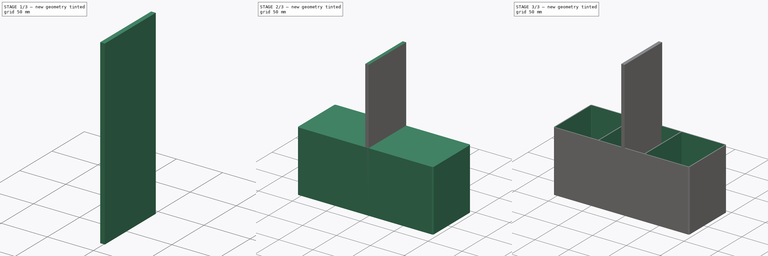
[diagram: build sequence overview — one tinted view per stage of 3, left to right]
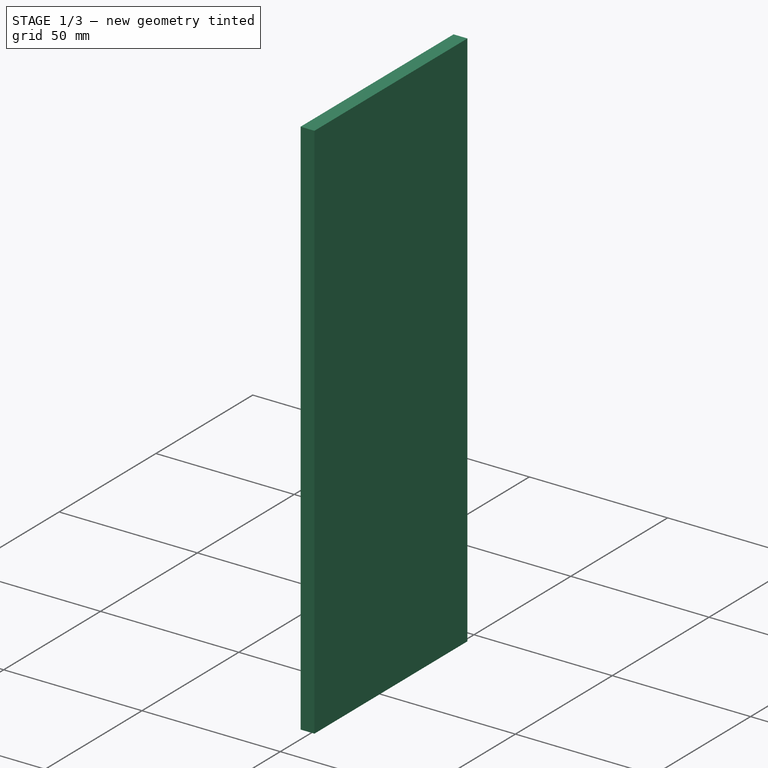
[diagram: stage 1 of 3 — iso view after this stage's code; geometry added in this stage tinted green]
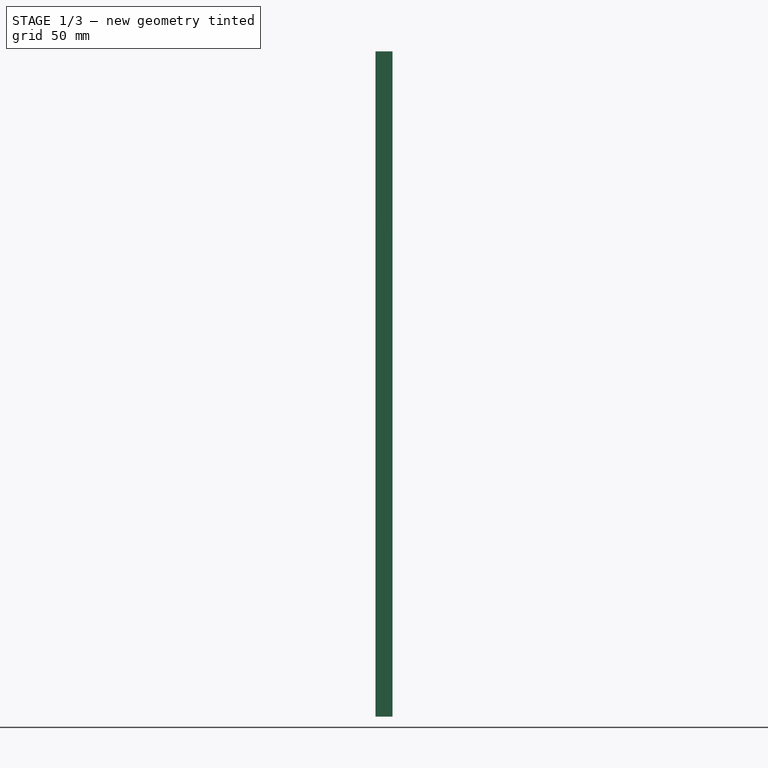
[diagram: stage 1 of 3 — front view after this stage's code; geometry added in this stage tinted green]
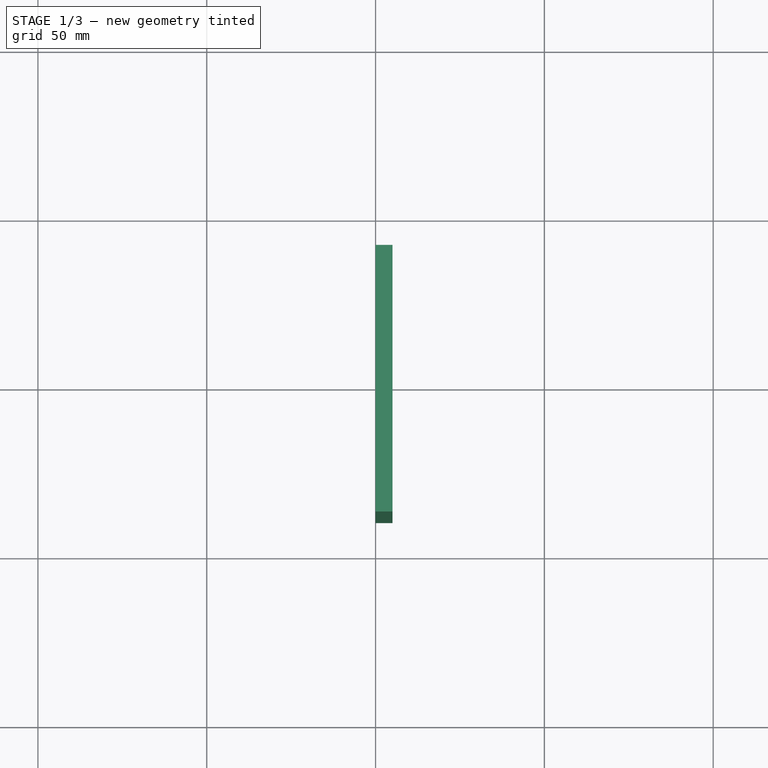
[diagram: stage 1 of 3 — top view after this stage's code; geometry added in this stage tinted green]
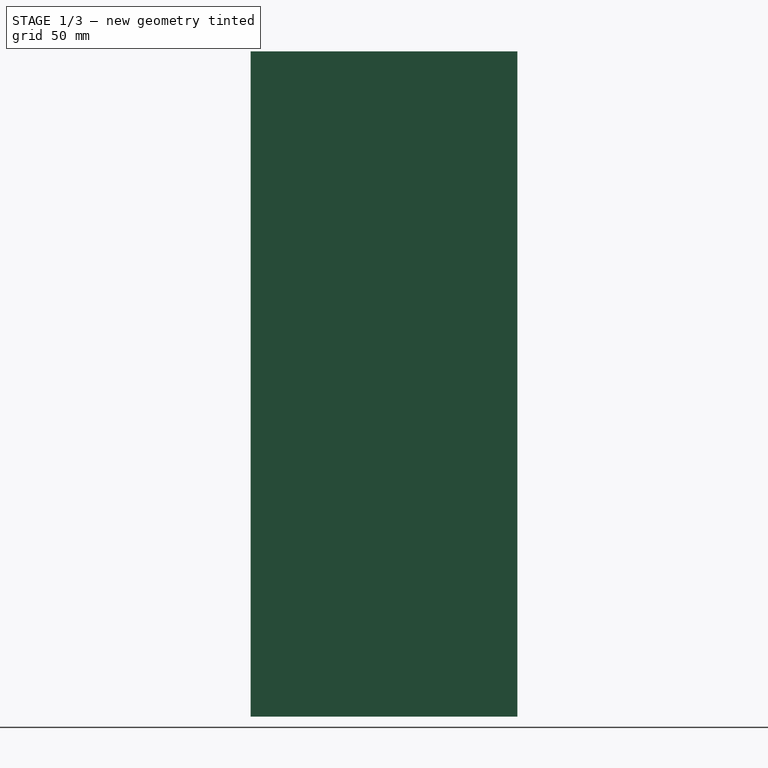
[diagram: stage 1 of 3 — right view after this stage's code; geometry added in this stage tinted green]
FCSTD DOCUMENT  (FreeCAD 0.21R33771 (Git))
Label: 卫生间-镜柜-配件
License: All rights reserved
LicenseURL: http://en.wikipedia.org/wiki/All_rights_reserved
objects: Sketcher::SketchObject×5, PartDesign::Pad×5, PartDesign::Body×4, App::Part×4, PartDesign::Thickness×1
note: 21 computed .brp shape members not serialized (recipe doc carries the construction recipe); baked Part::Feature solids carry a one-line shape summary decoded from their .brp

FEATURE [PartDesign::Body] Body001  label="实体001"
  Group = -> [Sketch002,Pad002]
  Origin = -> Origin003
  Tip = -> Pad002
FEATURE [App::Part] Part001  label="底层隔板"
  Group = -> [Body001]
  Origin = -> Origin002
  Placement = pos=(223,0,0) rot=(0,0,1;0rad)
FEATURE [Sketcher::SketchObject] Sketch003
  FullyConstrained = true
  MapMode = 5
  Placement = pos=(0,0,0) rot=(0.57735,0.57735,0.57735;2.0944rad)
  Support = -> [YZ_Plane005]
  sketch-geometry (4):
    g0: LineSegment StartX=-39.5 StartY=194 StartZ=0 EndX=39.5 EndY=194 EndZ=0
    g1: LineSegment StartX=39.5 StartY=194 StartZ=0 EndX=39.5 EndY=0 EndZ=0
    g2: LineSegment StartX=39.5 StartY=0 StartZ=0 EndX=-39.5 EndY=0 EndZ=0
    g3: LineSegment StartX=-39.5 StartY=0 StartZ=0 EndX=-39.5 EndY=194 EndZ=0
  constraints (12):
    c: Coincident(g0,g1)
    c: Coincident(g1,g2)
    c: Coincident(g2,g3)
    c: Coincident(g3,g0)
    c: Horizontal(g0)
    c: Horizontal(g2)
    c: Vertical(g1)
    c: Vertical(g3)
    c: DistanceX(g2,g2) = 79
    c: PointOnObject(g-1,g2)
    c: DistanceX(g-2,g1) = 39.5
    c: DistanceY(g1,g1) = 194
FEATURE [PartDesign::Pad] Pad003
  Direction = (1,-2e-16,3e-16)
  Length = 5
  Length2 = 10
  Placement = pos=(0,0,0) rot=(1,1,1;2.0944rad)
  Profile = -> Sketch003
  ReferenceAxis = -> Sketch003 [N_Axis]
  Type = 0
FEATURE [PartDesign::Body] Body002  label="实体002"
  Group = -> [Sketch003,Pad003]
  Origin = -> Origin005
  Tip = -> Pad003
FEATURE [App::Part] Part002  label="中间层隔板"
  Group = -> [Body002]
  Origin = -> Origin004
  Placement = pos=(224,0,236) rot=(0,0,1;0rad)
FEATURE [Sketcher::SketchObject] Sketch004
  FullyConstrained = true
  MapMode = 5
  Placement = pos=(0,0,0) rot=(0.57735,0.57735,0.57735;2.0944rad)
  Support = -> [YZ_Plane007]
  sketch-geometry (4):
    g0: LineSegment StartX=-39.5 StartY=197 StartZ=0 EndX=39.5 EndY=197 EndZ=0
    g1: LineSegment StartX=39.5 StartY=197 StartZ=0 EndX=39.5 EndY=0 EndZ=0
    g2: LineSegment StartX=39.5 StartY=0 StartZ=0 EndX=-39.5 EndY=0 EndZ=0
    g3: LineSegment StartX=-39.5 StartY=0 StartZ=0 EndX=-39.5 EndY=197 EndZ=0
  constraints (12):
    c: Coincident(g0,g1)
    c: Coincident(g1,g2)
    c: Coincident(g2,g3)
    c: Coincident(g3,g0)
    c: Horizontal(g0)
    c: Horizontal(g2)
    c: Vertical(g1)
    c: Vertical(g3)
    c: PointOnObject(g-1,g2)
    c: DistanceX(g2,g2) = 79
    c: DistanceX(g-2,g2) = -39.5
    c: DistanceY(g1,g1) = 197
FEATURE [PartDesign::Pad] Pad004
  Direction = (1,-2e-16,3e-16)
  Length = 5
  Length2 = 10
  Placement = pos=(0,0,0) rot=(1,1,1;2.0944rad)
  Profile = -> Sketch004
  ReferenceAxis = -> Sketch004 [N_Axis]
  Type = 0
FEATURE [PartDesign::Body] Body003  label="实体003"
  Group = -> [Sketch004,Pad004]
  Origin = -> Origin007
  Tip = -> Pad004
FEATURE [App::Part] Part003  label="顶层隔板"
  Group = -> [Body003]
  Origin = -> Origin006
  Placement = pos=(226,0,473) rot=(0,0,1;0rad)
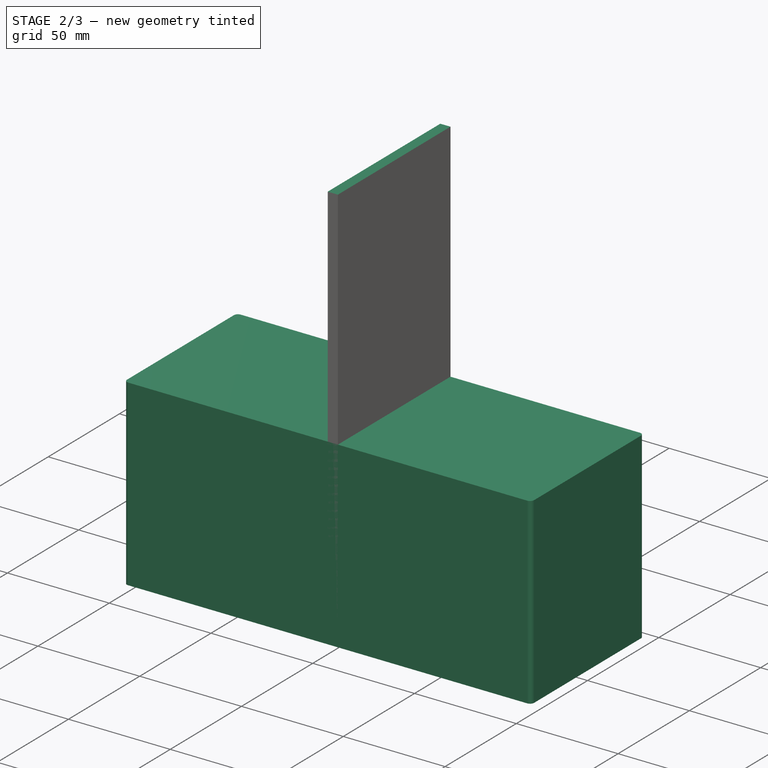
[diagram: stage 2 of 3 — iso view after this stage's code; geometry added in this stage tinted green]
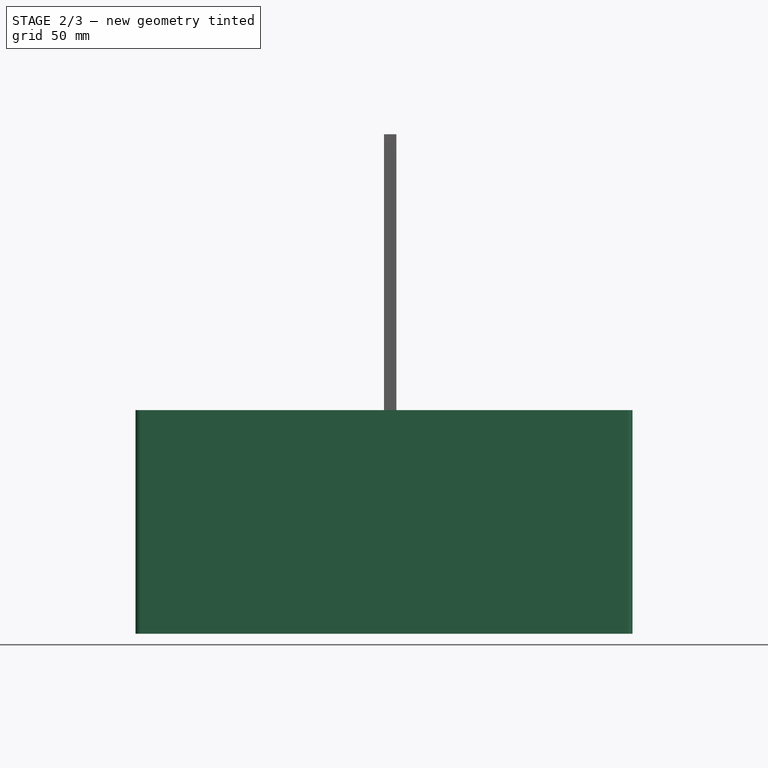
[diagram: stage 2 of 3 — front view after this stage's code; geometry added in this stage tinted green]
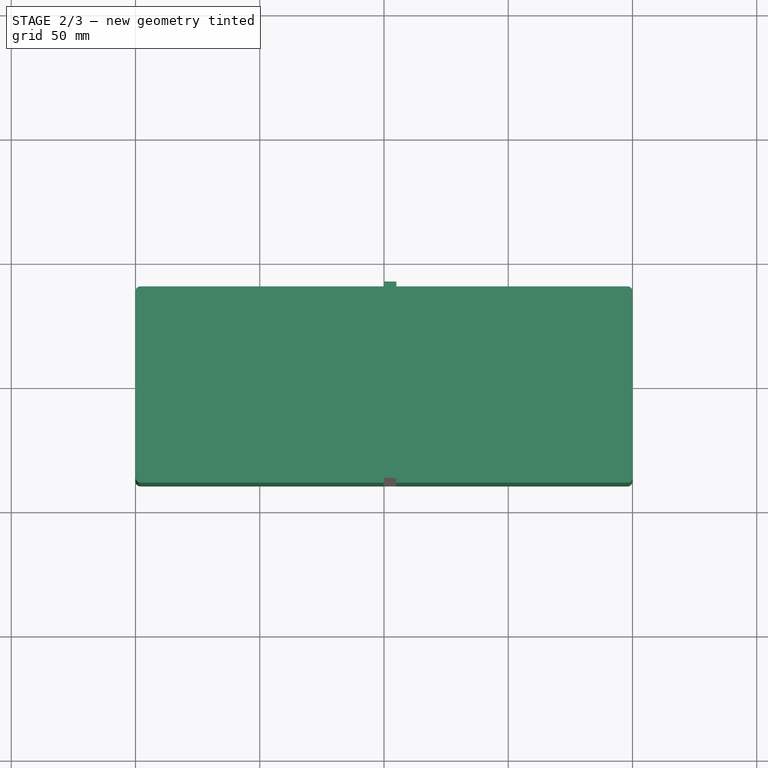
[diagram: stage 2 of 3 — top view after this stage's code; geometry added in this stage tinted green]
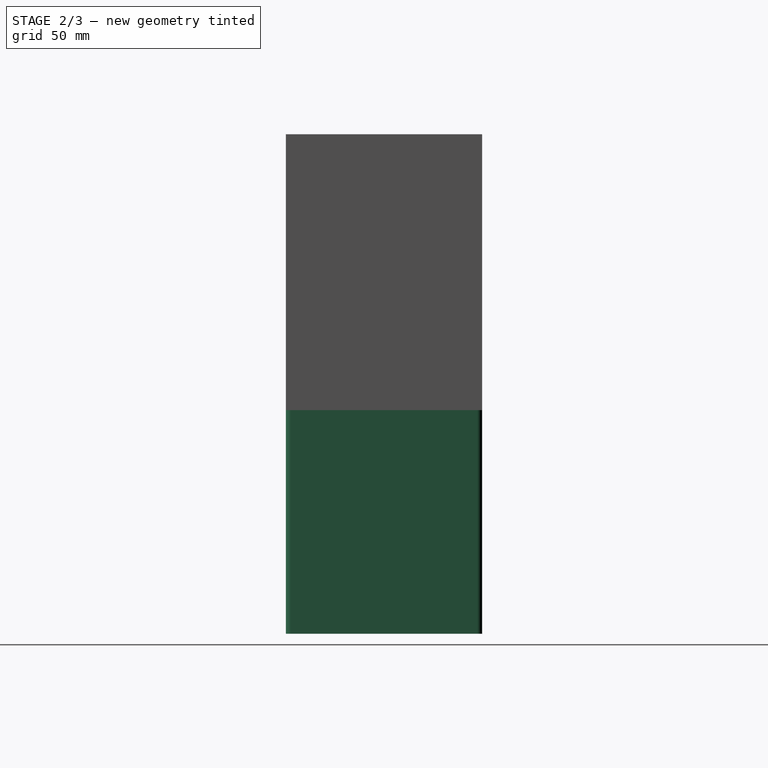
[diagram: stage 2 of 3 — right view after this stage's code; geometry added in this stage tinted green]
FEATURE [Sketcher::SketchObject] Sketch
  FullyConstrained = true
  MapMode = 5
  Support = -> [XY_Plane]
  sketch-geometry (8):
    g0: LineSegment StartX=-98 StartY=39.5 StartZ=0 EndX=98 EndY=39.5 EndZ=0
    g1: LineSegment StartX=100 StartY=37.5 StartZ=0 EndX=100 EndY=-37.5 EndZ=0
    g2: LineSegment StartX=98 StartY=-39.5 StartZ=0 EndX=-98 EndY=-39.5 EndZ=0
    g3: LineSegment StartX=-100 StartY=-37.5 StartZ=0 EndX=-100 EndY=37.5 EndZ=0
    g4: ArcOfCircle CenterX=-98 CenterY=37.5 CenterZ=0 NormalX=0 NormalY=0 NormalZ=1 AngleXU=0 Radius=2 StartAngle=1.5708 EndAngle=3.14159
    g5: ArcOfCircle CenterX=-98 CenterY=-37.5 CenterZ=0 NormalX=0 NormalY=0 NormalZ=1 AngleXU=0 Radius=2 StartAngle=3.14159 EndAngle=4.71239
    g6: ArcOfCircle CenterX=98 CenterY=-37.5 CenterZ=0 NormalX=0 NormalY=0 NormalZ=1 AngleXU=0 Radius=2 StartAngle=4.71239 EndAngle=6.28319
    g7: ArcOfCircle CenterX=98 CenterY=37.5 CenterZ=0 NormalX=0 NormalY=0 NormalZ=1 AngleXU=0 Radius=2 StartAngle=-1.8e-15 EndAngle=1.5708
  constraints (19):
    c: Horizontal(g0)
    c: Horizontal(g2)
    c: Vertical(g1)
    c: Vertical(g3)
    c: Tangent(g0,g4) = 1.5708
    c: Tangent(g3,g4) = 1.5708
    c: Tangent(g2,g5) = 1.5708
    c: Tangent(g3,g5) = 1.5708
    c: Tangent(g1,g6) = 1.5708
    c: Tangent(g2,g6) = 1.5708
    c: Tangent(g0,g7) = 1.5708
    c: Tangent(g1,g7) = 1.5708
    c: Radius(g7) = 2
    c: Radius(g6) = 2
    c: Radius(g5) = 2
    c: Radius(g4) = 2
    c: Distance(g3,g1) = 200
    c: Distance(g2,g0) = 79
    c: Symmetric(g5,g7,g-1)
FEATURE [PartDesign::Pad] Pad
  Direction = (0,0,1)
  Length = 90
  Length2 = 10
  Profile = -> Sketch
  ReferenceAxis = -> Sketch [N_Axis]
  Type = 0
FEATURE [PartDesign::Body] Body  label="实体"
  Group = -> [Sketch,Pad,Thickness,Sketch001,Pad001]
  Origin = -> Origin
  Tip = -> Pad001
FEATURE [App::Part] Part  label="盒子"
  Group = -> [Body]
  Origin = -> Origin001
FEATURE [Sketcher::SketchObject] Sketch002
  FullyConstrained = true
  MapMode = 5
  Placement = pos=(0,0,0) rot=(0.57735,0.57735,0.57735;2.0944rad)
  Support = -> [YZ_Plane003]
  sketch-geometry (4):
    g0: LineSegment StartX=-39.5 StartY=201 StartZ=0 EndX=39.5 EndY=201 EndZ=0
    g1: LineSegment StartX=39.5 StartY=201 StartZ=0 EndX=39.5 EndY=0 EndZ=0
    g2: LineSegment StartX=39.5 StartY=0 StartZ=0 EndX=-39.5 EndY=0 EndZ=0
    g3: LineSegment StartX=-39.5 StartY=0 StartZ=0 EndX=-39.5 EndY=201 EndZ=0
  constraints (12):
    c: Coincident(g0,g1)
    c: Coincident(g1,g2)
    c: Coincident(g2,g3)
    c: Coincident(g3,g0)
    c: Horizontal(g0)
    c: Horizontal(g2)
    c: Vertical(g1)
    c: Vertical(g3)
    c: DistanceX(g2,g2) = 79
    c: PointOnObject(g-1,g2)
    c: DistanceX(g-2,g1) = 39.5
    c: DistanceY(g3,g3) = 201
FEATURE [PartDesign::Pad] Pad002
  Direction = (1,-2e-16,3e-16)
  Length = 5
  Length2 = 10
  Placement = pos=(0,0,0) rot=(1,1,1;2.0944rad)
  Profile = -> Sketch002
  ReferenceAxis = -> Sketch002 [N_Axis]
  Type = 0
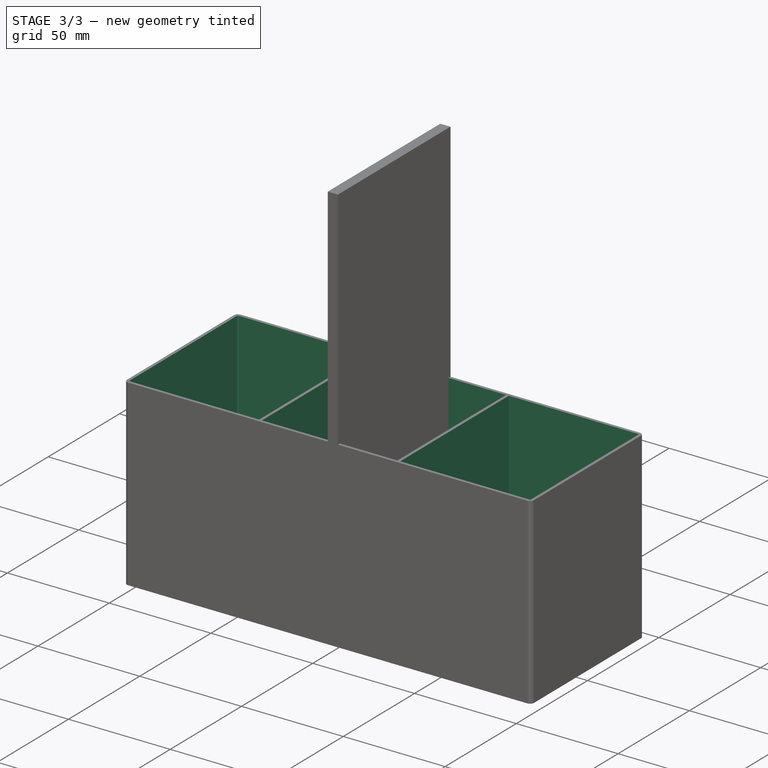
[diagram: stage 3 of 3 — iso view after this stage's code; geometry added in this stage tinted green]
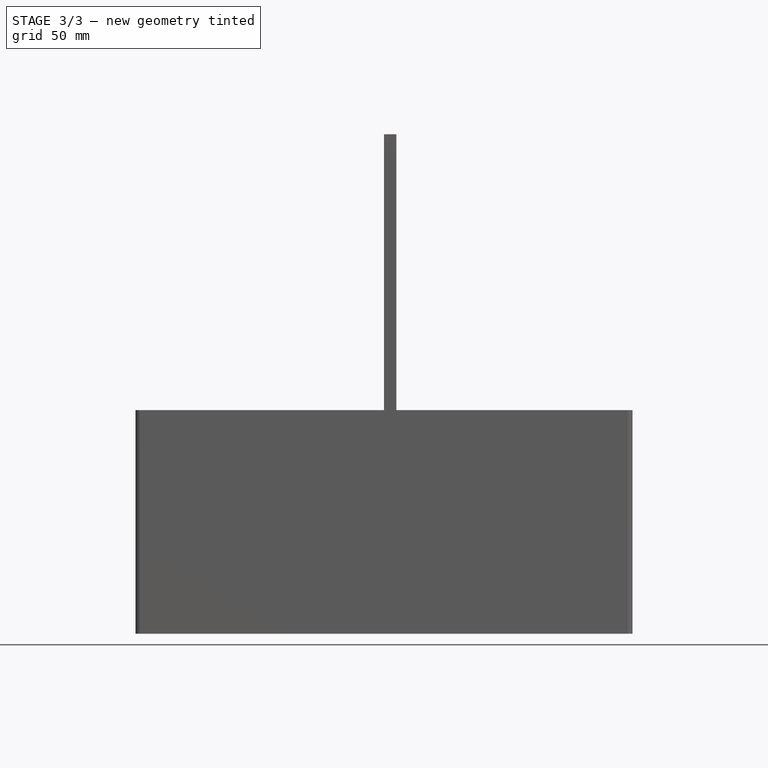
[diagram: stage 3 of 3 — front view after this stage's code; geometry added in this stage tinted green]
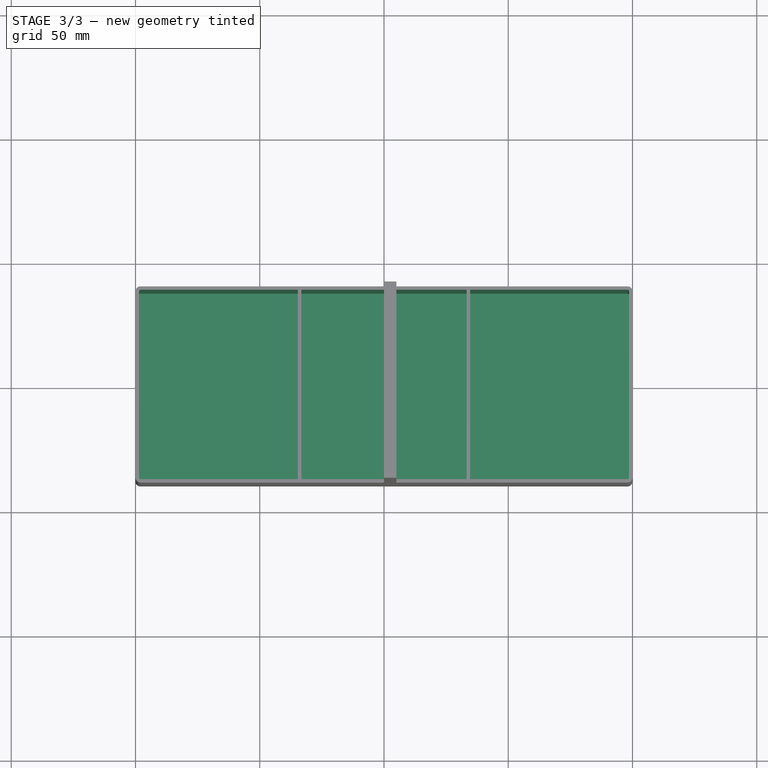
[diagram: stage 3 of 3 — top view after this stage's code; geometry added in this stage tinted green]
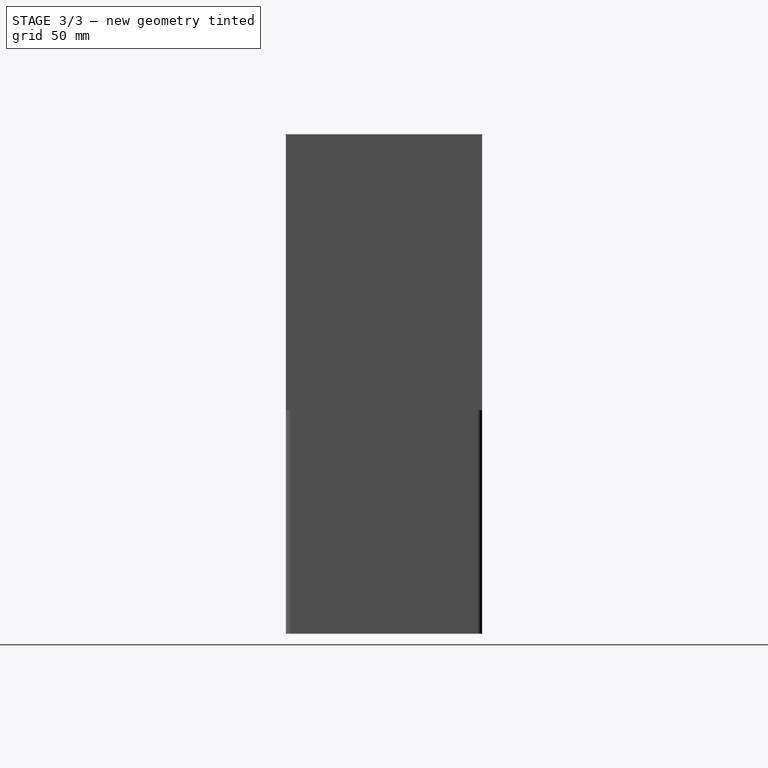
[diagram: stage 3 of 3 — right view after this stage's code; geometry added in this stage tinted green]
FEATURE [PartDesign::Thickness] Thickness
  Base = -> Pad [Face10]
  BaseFeature = -> Pad
  Intersection = false
  Join = 0
  Mode = 0
  Reversed = true
  SupportTransform = false
  Value = 1.4
FEATURE [Sketcher::SketchObject] Sketch001
  ExternalGeometry = -> [Thickness]
  FullyConstrained = true
  MapMode = 5
  Placement = pos=(0,0,1.4) rot=(0,0,1;0rad)
  Support = -> [Thickness]
  sketch-geometry (8):
    g0: LineSegment StartX=-34.6667 StartY=38.1 StartZ=0 EndX=-33.2667 EndY=38.1 EndZ=0
    g1: LineSegment StartX=-33.2667 StartY=38.1 StartZ=0 EndX=-33.2667 EndY=-38.1 EndZ=0
    g2: LineSegment StartX=-33.2667 StartY=-38.1 StartZ=0 EndX=-34.6667 EndY=-38.1 EndZ=0
    g3: LineSegment StartX=-34.6667 StartY=-38.1 StartZ=0 EndX=-34.6667 EndY=38.1 EndZ=0
    g4: LineSegment StartX=33.2694 StartY=38.1 StartZ=0 EndX=34.6694 EndY=38.1 EndZ=0
    g5: LineSegment StartX=34.6694 StartY=38.1 StartZ=0 EndX=34.6694 EndY=-38.1 EndZ=0
    g6: LineSegment StartX=34.6694 StartY=-38.1 StartZ=0 EndX=33.2694 EndY=-38.1 EndZ=0
    g7: LineSegment StartX=33.2694 StartY=-38.1 StartZ=0 EndX=33.2694 EndY=38.1 EndZ=0
  constraints (25):
    c: Coincident(g0,g1)
    c: Coincident(g1,g2)
    c: Coincident(g2,g3)
    c: Coincident(g3,g0)
    c: Horizontal(g0)
    c: Horizontal(g2)
    c: Vertical(g1)
    c: Vertical(g3)
    c: Coincident(g4,g5)
    c: Coincident(g5,g6)
    c: Coincident(g6,g7)
    c: Coincident(g7,g4)
    c: Horizontal(g4)
    c: Horizontal(g6)
    c: Vertical(g5)
    c: Vertical(g7)
    c: DistanceX(g4,g4) = 1.4
    c: DistanceX(g0,g0) = 1.4
    c: PointOnObject(g0,g-4)
    c: PointOnObject(g1,g-3)
    c: PointOnObject(g6,g-3)
    c: PointOnObject(g4,g-4)
    c: DistanceX(g-4,g-4) = 196
    c: Distance(g4,g-6) = 65.3333
    c: Distance(g0,g-5) = 65.3333
FEATURE [PartDesign::Pad] Pad001
  BaseFeature = -> Thickness
  Direction = (0,0,1)
  Length = 88.6
  Length2 = 10
  Profile = -> Sketch001
  ReferenceAxis = -> Sketch001 [N_Axis]
  Type = 0
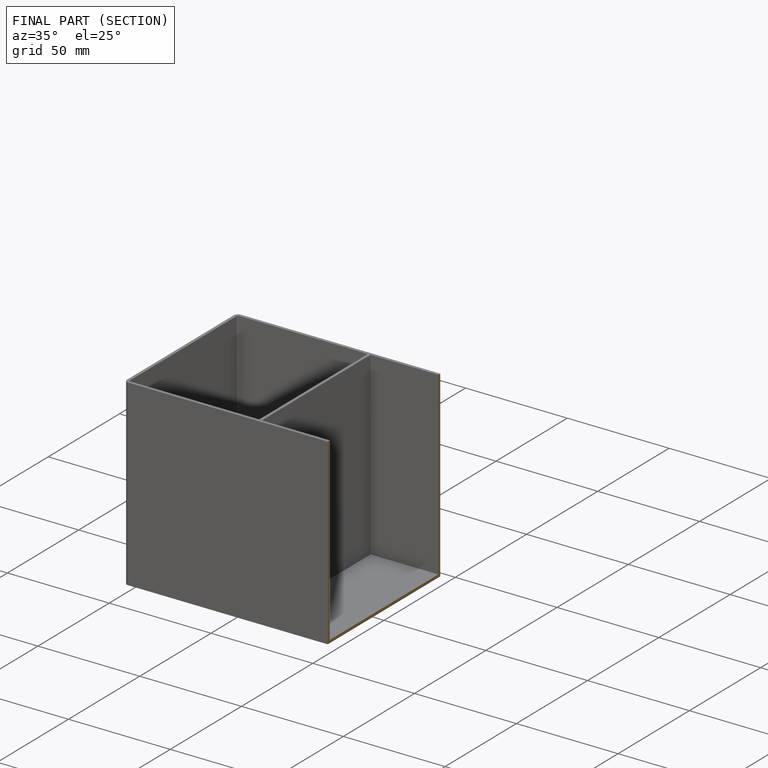
[diagram: finished part — half-section view (interior)]
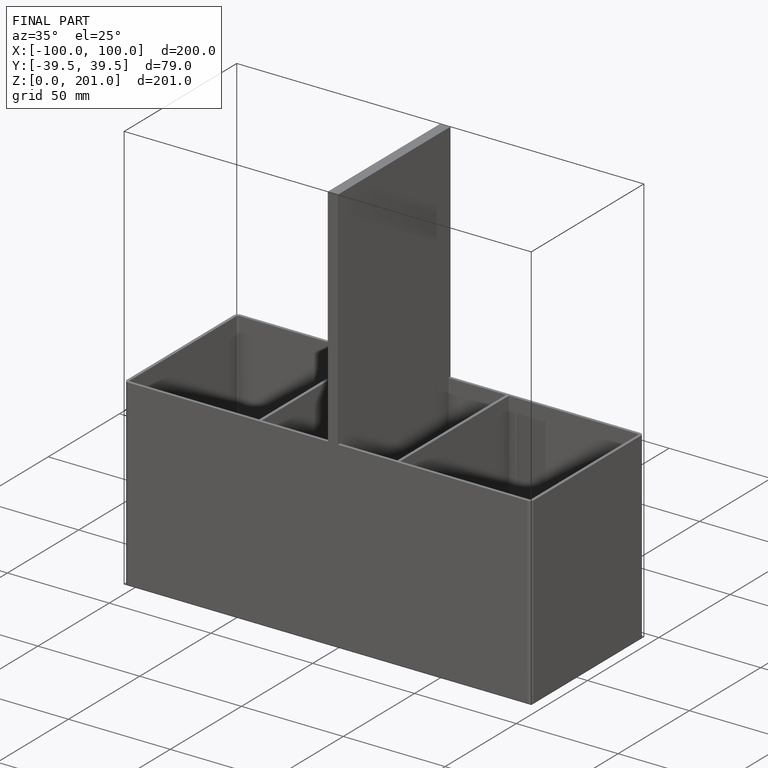
[diagram: finished part — iso view with bounding-box wireframe]
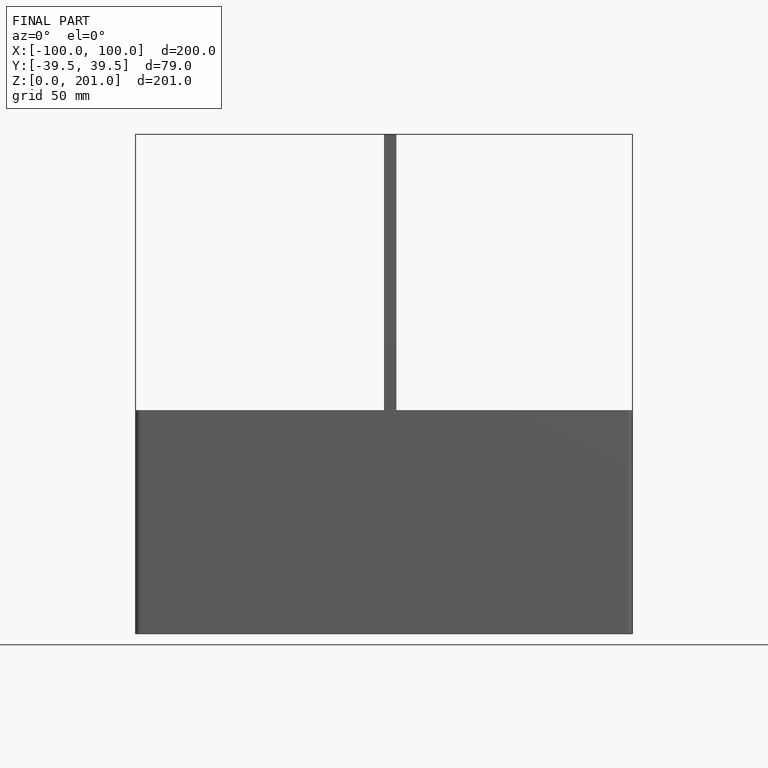
[diagram: finished part — front view with bounding-box wireframe]
